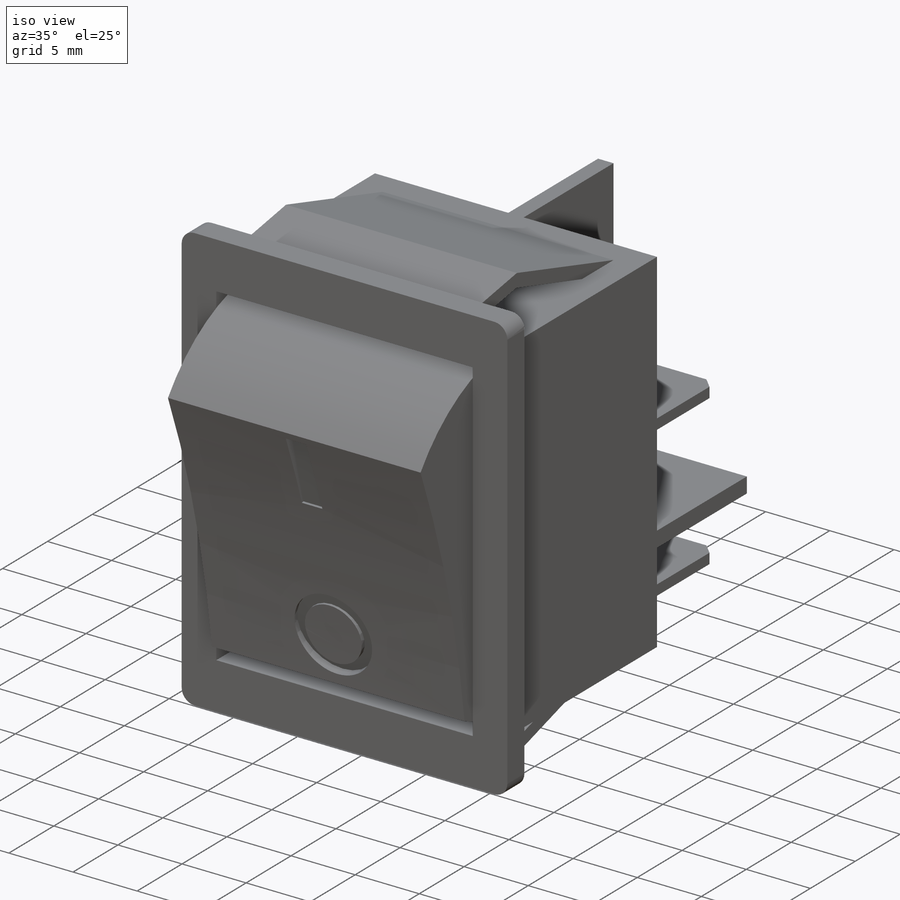
[diagram: iso view]
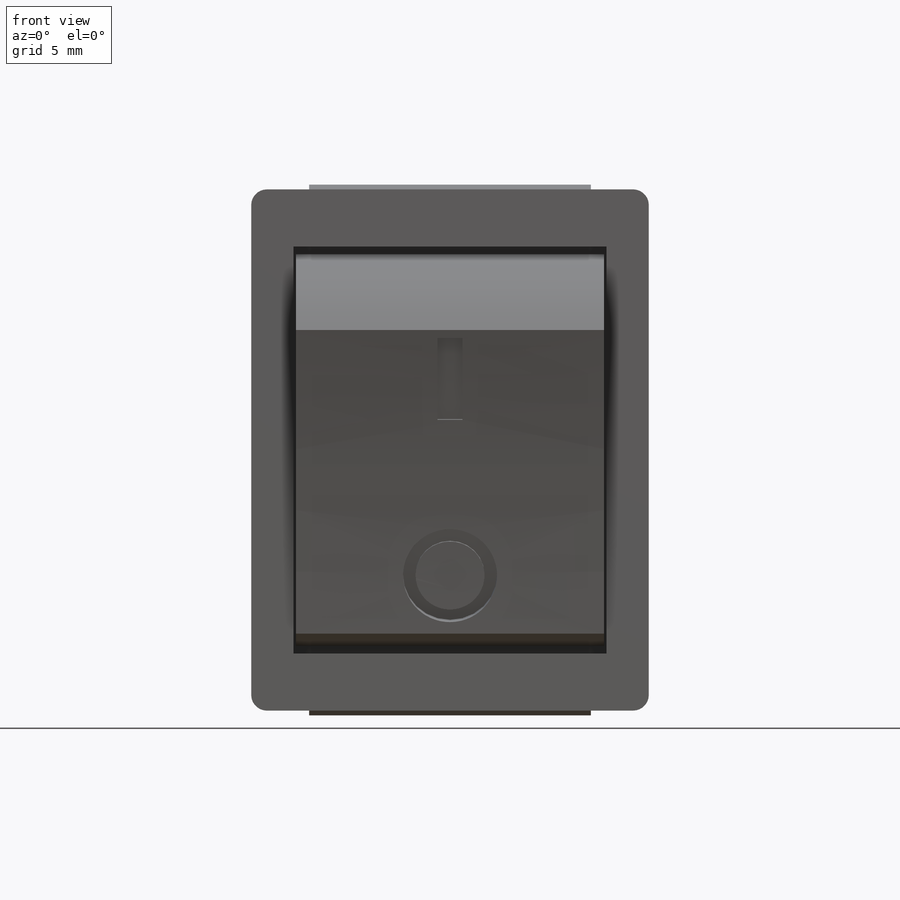
[diagram: front view]
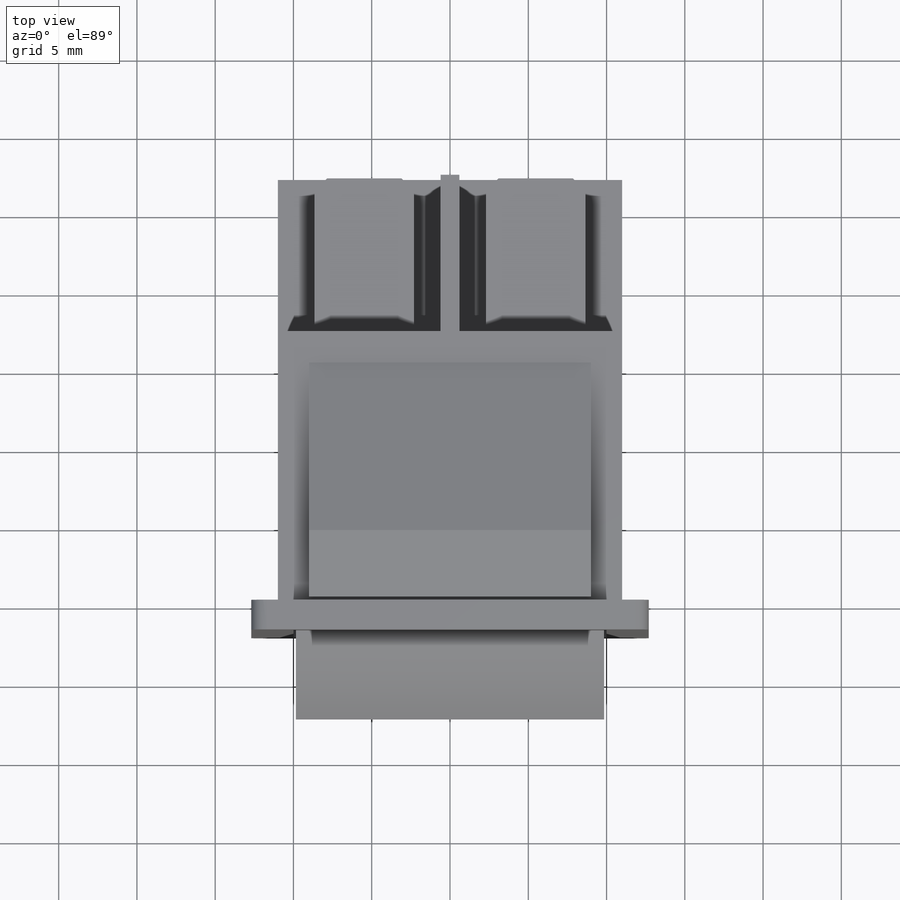
[diagram: top view]
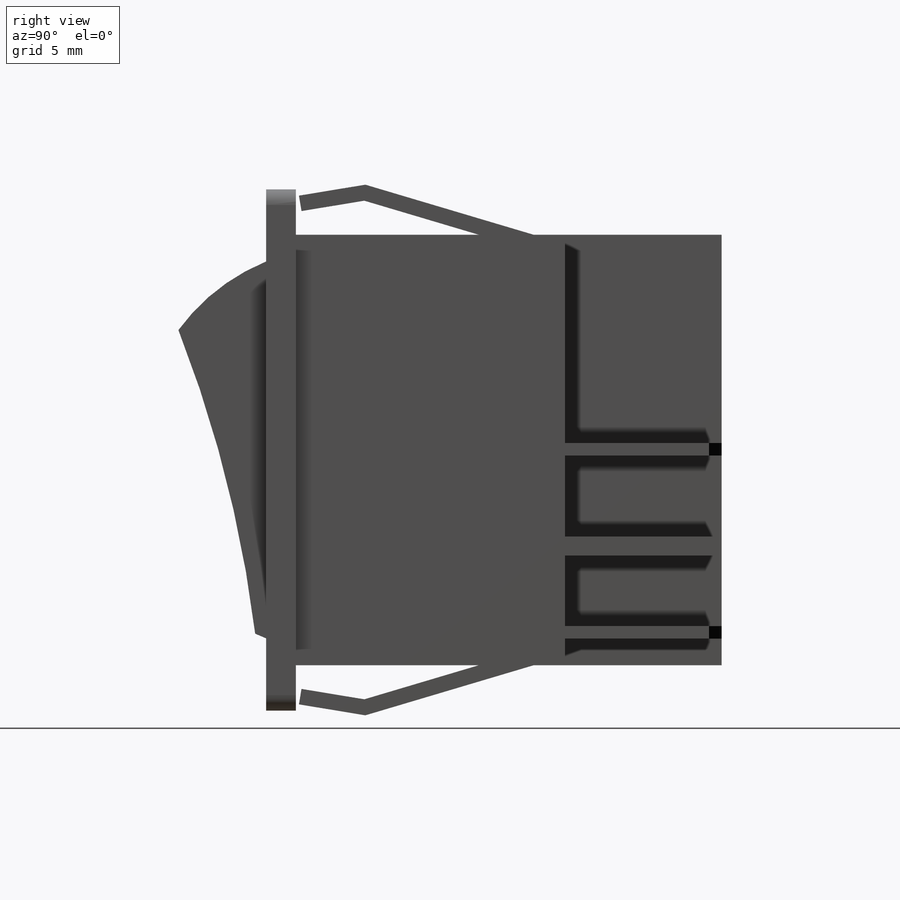
[diagram: right view]
SOLIDWORKS PART (.sldprt)
format: sldprt  version: not decoded by parser v0  size: 460,800 bytes
history: native  units: mm
features: sketch x8, extrude x5, cut_extrude x3, material x1, chamfer x1 (+12 scaffold rows collapsed)
feature tree (30):
  scaffold x12  (default folders/planes/origin — collapsed)
  material  "ABS PC"
  sketch  "Sketch1"  dims[D9=1.0mm D1=25.4mm D2=12.7mm D3=33.3mm D4=16.65mm D5=20.0mm D6=10.0mm D7=26.0mm D8=13.0mm]
  extrude  "Extrude1"  Depth=1.9mm
  sketch  "Sketch2"  dims[D1=22.0mm D2=11.0mm D3=27.5mm D4=13.75mm]
  extrude  "Extrude2"  Depth=17.2mm
  sketch  "Sketch3"  dims[D1=19.7mm D2=9.85mm D3=25.0mm D4=12.5mm]
  extrude  "Extrude3"  Depth=7.6mm
  sketch  "Sketch4"  dims[D2=26.0mm D1=3.0mm D3=10.2mm D4=7.5mm]
  cut_extrude  "Cut-Extrude1"  [1 undecoded]
  sketch  "Sketch5"  dims[c1.D4=6.0mm c1.D5=6.0mm c1.D6=4.4mm c1.D1=0.8mm c1.D2=1.6mm c1.D3=5.5mm c2.D5=7.0mm]
  cut_extrude  "Cut-Extrude2"  Depth=0.7mm
  sketch  "Sketch6"  dims[D1=80.0mm]
  cut_extrude  "Cut-Extrude3"  [1 undecoded]
  sketch  "Sketch7"  dims[D1=0.6mm D2=1.2mm D3=1.2mm D4=7.0mm D5=6.35mm D6=6.35mm D7=6.35mm D8=6.35mm D9=1.7mm D10=1.7mm D11=0.8mm D12=0.8mm D13=13.3mm D14=13.3mm D15=0.8mm D16=0.8mm D17=1.7mm D18=1.7mm D19=1.7mm D20=1.7mm]
  extrude  "Extrude4"  Depth=10mm
  chamfer  "Chamfer1"  Distance=0.8mm Angle=45deg
  sketch  "Sketch8"  dims[c1.D1=0.2mm c1.D2=1.9mm c2.D2=~14.470294deg c3.D2=0.4mm c3.D3=0.3mm c3.D4=4.3mm c3.D5=2.0mm c3.D6=1.0mm c3.D7=1.0mm]
  extrude  "Extrude5"  Depth=9mm
decode coverage: 15 of 17 modeling features carry decoded parameters
note: ~ marks probable driven/reference dimensions
note: 2 parameter values undecoded
note: suppression state not decoded; provenance and decode notes live in map.json
